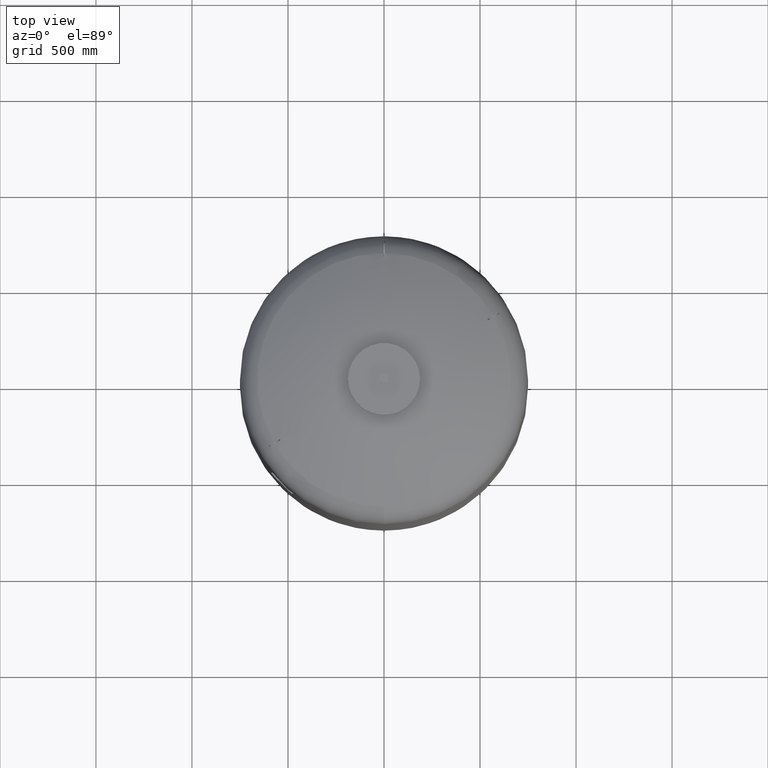
[diagram: clean part render]
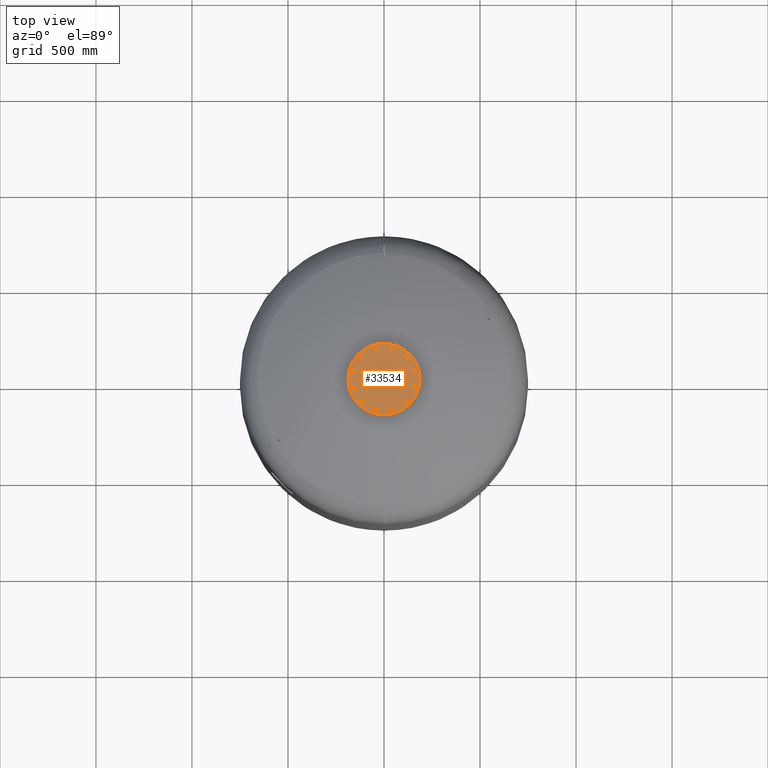
[diagram: same view with one face highlighted and labeled with its STEP entity id]
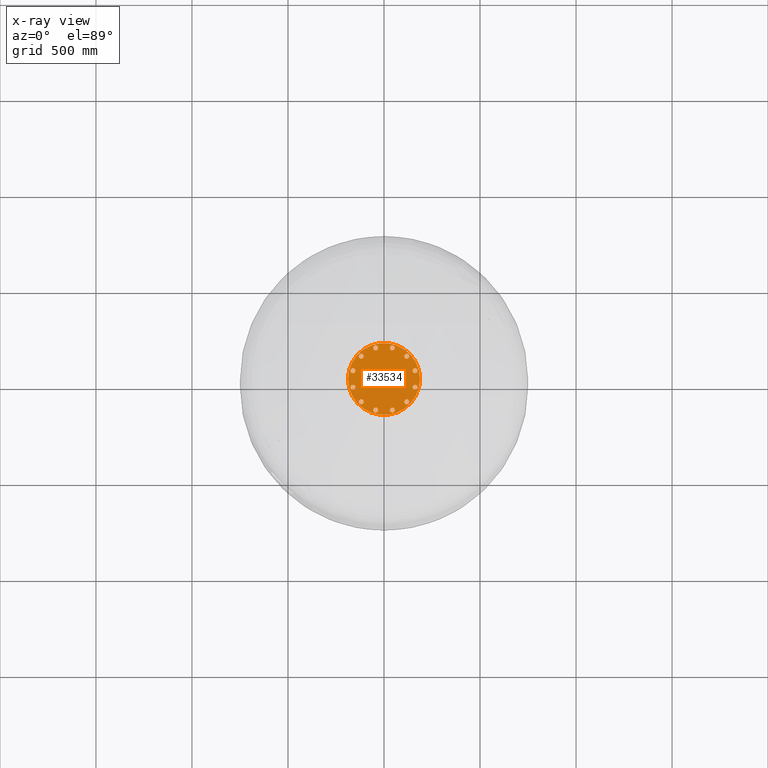
[diagram: x-ray of the same camera — body ghosted, the highlighted face saturated]
A machine part, top view. The second image highlights one B-rep face of the part: STEP entity #33534.
The next image is the same camera in x-ray: the body ghosted, the highlighted face saturated — about 0% of this face is hidden behind the body in this view.
In plain terms, the highlighted planar face has unit normal (0, 0, 1).
Its self-contained STEP definition (entity closure, byte-faithful):
#25772=CARTESIAN_POINT('',(-187.500000000000000,0.0,3056.0));
#25773=VERTEX_POINT('',#25772);
#25789=CARTESIAN_POINT('',(187.500000000000000,-2.296137E-014,3056.0));
#25790=VERTEX_POINT('',#25789);
#25797=CARTESIAN_POINT('',(0.0,0.0,3056.0));
#25798=DIRECTION('',(0.0,0.0,-1.0));
#25799=DIRECTION('',(-1.0,0.0,0.0));
#25800=AXIS2_PLACEMENT_3D('',#25797,#25798,#25799);
#25801=CIRCLE('',#25800,187.500000000000000);
#25802=EDGE_CURVE('',#25790,#25773,#25801,.T.);
#31028=CARTESIAN_POINT('',(157.729139400922860,30.104983413641008,3056.0));
#31029=VERTEX_POINT('',#31028);
#31030=CARTESIAN_POINT('',(148.288440171855850,40.247625971983268,3056.0));
#31031=VERTEX_POINT('',#31030);
#31032=CARTESIAN_POINT('',(157.729139400922860,30.104983413641008,3056.0));
#31033=DIRECTION('',(-0.681323780155013,0.731982176419128,0.0));
#31034=VECTOR('',#31033,13.856406460551090);
#31035=LINE('',#31032,#31034);
#31036=EDGE_CURVE('',#31029,#31031,#31035,.T.);
#31068=CARTESIAN_POINT('',(171.233275132485970,33.209547496330110,3056.0));
#31069=VERTEX_POINT('',#31068);
#31070=CARTESIAN_POINT('',(171.233275132485970,33.209547496330110,3056.0));
#31071=DIRECTION('',(-0.974577049973894,-0.224052613607123,0.0));
#31072=VECTOR('',#31071,13.856406460551119);
#31073=LINE('',#31070,#31072);
#31074=EDGE_CURVE('',#31069,#31029,#31073,.T.);
#31099=CARTESIAN_POINT('',(175.296711634982050,46.456754137361422,3056.0));
#31100=VERTEX_POINT('',#31099);
#31101=CARTESIAN_POINT('',(175.296711634982050,46.456754137361422,3056.0));
#31102=DIRECTION('',(-0.293253269818881,-0.956034790026249,0.0));
#31103=VECTOR('',#31102,13.856406460551076);
#31104=LINE('',#31101,#31103);
#31105=EDGE_CURVE('',#31100,#31069,#31104,.T.);
#31130=CARTESIAN_POINT('',(152.351876674351930,53.494832613014587,3056.0));
#31131=VERTEX_POINT('',#31130);
#31132=CARTESIAN_POINT('',(148.288440171855850,40.247625971983268,3056.0));
#31133=DIRECTION('',(0.293253269818881,0.956034790026249,0.0));
#31134=VECTOR('',#31133,13.856406460551083);
#31135=LINE('',#31132,#31134);
#31136=EDGE_CURVE('',#31031,#31131,#31135,.T.);
#31161=CARTESIAN_POINT('',(165.856012405915040,56.599396695703689,3056.0));
#31162=VERTEX_POINT('',#31161);
#31163=CARTESIAN_POINT('',(152.351876674351930,53.494832613014587,3056.0));
#31164=DIRECTION('',(0.974577049973894,0.224052613607123,0.0));
#31165=VECTOR('',#31164,13.856406460551119);
#31166=LINE('',#31163,#31165);
#31167=EDGE_CURVE('',#31131,#31162,#31166,.T.);
#31192=CARTESIAN_POINT('',(165.856012405915040,56.599396695703689,3056.0));
#31193=DIRECTION('',(0.681323780155012,-0.731982176419129,0.0));
#31194=VECTOR('',#31193,13.856406460551096);
#31195=LINE('',#31192,#31194);
#31196=EDGE_CURVE('',#31162,#31100,#31195,.T.);
#31228=CARTESIAN_POINT('',(121.544949931435720,104.936250117183760,3056.0));
#31229=VERTEX_POINT('',#31228);
#31230=CARTESIAN_POINT('',(108.297743290404380,108.999686619679820,3056.0));
#31231=VERTEX_POINT('',#31230);
#31232=CARTESIAN_POINT('',(121.544949931435720,104.936250117183760,3056.0));
#31233=DIRECTION('',(-0.956034790026250,0.293253269818880,0.0));
#31234=VECTOR('',#31233,13.856406460551101);
#31235=LINE('',#31232,#31234);
#31236=EDGE_CURVE('',#31229,#31231,#31235,.T.);
#31268=CARTESIAN_POINT('',(131.687592489777960,114.376949346250780,3056.0));
#31269=VERTEX_POINT('',#31268);
#31270=CARTESIAN_POINT('',(131.687592489777960,114.376949346250780,3056.0));
#31271=DIRECTION('',(-0.731982176419127,-0.681323780155014,0.0));
#31272=VECTOR('',#31271,13.856406460551080);
#31273=LINE('',#31270,#31272);
#31274=EDGE_CURVE('',#31269,#31229,#31273,.T.);
#31299=CARTESIAN_POINT('',(128.583028407088880,127.881085077813880,3056.0));
#31300=VERTEX_POINT('',#31299);
#31301=CARTESIAN_POINT('',(128.583028407088880,127.881085077813880,3056.0));
#31302=DIRECTION('',(0.224052613607122,-0.974577049973894,0.0));
#31303=VECTOR('',#31302,13.856406460551099);
#31304=LINE('',#31301,#31303);
#31305=EDGE_CURVE('',#31300,#31269,#31304,.T.);
#31330=CARTESIAN_POINT('',(105.193179207715300,122.503822351242900,3056.0));
#31331=VERTEX_POINT('',#31330);
#31332=CARTESIAN_POINT('',(108.297743290404380,108.999686619679820,3056.0));
#31333=DIRECTION('',(-0.224052613607122,0.974577049973894,0.0));
#31334=VECTOR('',#31333,13.856406460551087);
#31335=LINE('',#31332,#31334);
#31336=EDGE_CURVE('',#31231,#31331,#31335,.T.);
#31361=CARTESIAN_POINT('',(115.335821766057560,131.944521580309950,3056.0));
#31362=VERTEX_POINT('',#31361);
#31363=CARTESIAN_POINT('',(105.193179207715300,122.503822351242900,3056.0));
#31364=DIRECTION('',(0.731982176419127,0.681323780155014,0.0));
#31365=VECTOR('',#31364,13.856406460551121);
#31366=LINE('',#31363,#31365);
#31367=EDGE_CURVE('',#31331,#31362,#31366,.T.);
#31392=CARTESIAN_POINT('',(115.335821766057560,131.944521580309950,3056.0));
#31393=DIRECTION('',(0.956034790026249,-0.293253269818881,0.0));
#31394=VECTOR('',#31393,13.856406460551076);
#31395=LINE('',#31392,#31394);
#31396=EDGE_CURVE('',#31362,#31300,#31395,.T.);
#31428=CARTESIAN_POINT('',(52.792889283739193,151.649933345076730,3056.0));
#31429=VERTEX_POINT('',#31428);
#31430=CARTESIAN_POINT('',(39.288753552176118,148.545369262387680,3056.0));
#31431=VERTEX_POINT('',#31430);
#31432=CARTESIAN_POINT('',(52.792889283739193,151.649933345076730,3056.0));
#31433=DIRECTION('',(-0.974577049973894,-0.224052613607120,0.0));
#31434=VECTOR('',#31433,13.856406460551073);
#31435=LINE('',#31432,#31434);
#31436=EDGE_CURVE('',#31429,#31431,#31435,.T.);
#31468=CARTESIAN_POINT('',(56.856325786235274,164.897139986108100,3056.0));
#31469=VERTEX_POINT('',#31468);
#31470=CARTESIAN_POINT('',(56.856325786235274,164.897139986108100,3056.0));
#31471=DIRECTION('',(-0.293253269818881,-0.956034790026249,0.0));
#31472=VECTOR('',#31471,13.856406460551133);
#31473=LINE('',#31470,#31472);
#31474=EDGE_CURVE('',#31469,#31429,#31473,.T.);
#31499=CARTESIAN_POINT('',(47.415626557168267,175.039782544450330,3056.0));
#31500=VERTEX_POINT('',#31499);
#31501=CARTESIAN_POINT('',(47.415626557168267,175.039782544450330,3056.0));
#31502=DIRECTION('',(0.681323780155014,-0.731982176419128,0.0));
#31503=VECTOR('',#31502,13.856406460551069);
#31504=LINE('',#31501,#31503);
#31505=EDGE_CURVE('',#31500,#31469,#31504,.T.);
#31530=CARTESIAN_POINT('',(29.848054323109103,158.688011820729910,3056.0));
#31531=VERTEX_POINT('',#31530);
#31532=CARTESIAN_POINT('',(39.288753552176118,148.545369262387680,3056.0));
#31533=DIRECTION('',(-0.681323780155014,0.731982176419127,0.0));
#31534=VECTOR('',#31533,13.856406460551076);
#31535=LINE('',#31532,#31534);
#31536=EDGE_CURVE('',#31431,#31531,#31535,.T.);
#31561=CARTESIAN_POINT('',(33.911490825605156,171.935218461761250,3056.0));
#31562=VERTEX_POINT('',#31561);
#31563=CARTESIAN_POINT('',(29.848054323109103,158.688011820729910,3056.0));
#31564=DIRECTION('',(0.293253269818879,0.956034790026250,0.0));
#31565=VECTOR('',#31564,13.856406460551097);
#31566=LINE('',#31563,#31565);
#31567=EDGE_CURVE('',#31531,#31562,#31566,.T.);
#31592=CARTESIAN_POINT('',(33.911490825605156,171.935218461761250,3056.0));
#31593=DIRECTION('',(0.974577049973894,0.224052613607121,0.0));
#31594=VECTOR('',#31593,13.856406460551113);
#31595=LINE('',#31592,#31594);
#31596=EDGE_CURVE('',#31562,#31500,#31595,.T.);
#31628=CARTESIAN_POINT('',(-30.104983413641008,157.729139400922860,3056.0));
#31629=VERTEX_POINT('',#31628);
#31630=CARTESIAN_POINT('',(-40.247625971983268,148.288440171855850,3056.0));
#31631=VERTEX_POINT('',#31630);
#31632=CARTESIAN_POINT('',(-30.104983413641008,157.729139400922860,3056.0));
#31633=DIRECTION('',(-0.731982176419128,-0.681323780155013,0.0));
#31634=VECTOR('',#31633,13.856406460551090);
#31635=LINE('',#31632,#31634);
#31636=EDGE_CURVE('',#31629,#31631,#31635,.T.);
#31668=CARTESIAN_POINT('',(-33.209547496330110,171.233275132485970,3056.0));
#31669=VERTEX_POINT('',#31668);
#31670=CARTESIAN_POINT('',(-33.209547496330110,171.233275132485970,3056.0));
#31671=DIRECTION('',(0.224052613607123,-0.974577049973894,0.0));
#31672=VECTOR('',#31671,13.856406460551119);
#31673=LINE('',#31670,#31672);
#31674=EDGE_CURVE('',#31669,#31629,#31673,.T.);
#31699=CARTESIAN_POINT('',(-46.456754137361422,175.296711634982050,3056.0));
#31700=VERTEX_POINT('',#31699);
#31701=CARTESIAN_POINT('',(-46.456754137361422,175.296711634982050,3056.0));
#31702=DIRECTION('',(0.956034790026249,-0.293253269818881,0.0));
#31703=VECTOR('',#31702,13.856406460551076);
#31704=LINE('',#31701,#31703);
#31705=EDGE_CURVE('',#31700,#31669,#31704,.T.);
#31730=CARTESIAN_POINT('',(-53.494832613014587,152.351876674351930,3056.0));
#31731=VERTEX_POINT('',#31730);
#31732=CARTESIAN_POINT('',(-40.247625971983268,148.288440171855850,3056.0));
#31733=DIRECTION('',(-0.956034790026249,0.293253269818881,0.0));
#31734=VECTOR('',#31733,13.856406460551083);
#31735=LINE('',#31732,#31734);
#31736=EDGE_CURVE('',#31631,#31731,#31735,.T.);
#31761=CARTESIAN_POINT('',(-56.599396695703689,165.856012405915040,3056.0));
#31762=VERTEX_POINT('',#31761);
#31763=CARTESIAN_POINT('',(-53.494832613014587,152.351876674351930,3056.0));
#31764=DIRECTION('',(-0.224052613607123,0.974577049973894,0.0));
#31765=VECTOR('',#31764,13.856406460551119);
#31766=LINE('',#31763,#31765);
#31767=EDGE_CURVE('',#31731,#31762,#31766,.T.);
#31792=CARTESIAN_POINT('',(-56.599396695703689,165.856012405915040,3056.0));
#31793=DIRECTION('',(0.731982176419129,0.681323780155012,0.0));
#31794=VECTOR('',#31793,13.856406460551096);
#31795=LINE('',#31792,#31794);
#31796=EDGE_CURVE('',#31762,#31700,#31795,.T.);
#31828=CARTESIAN_POINT('',(-104.936250117183700,121.544949931435750,3056.0));
#31829=VERTEX_POINT('',#31828);
#31830=CARTESIAN_POINT('',(-108.999686619679760,108.297743290404440,3056.0));
#31831=VERTEX_POINT('',#31830);
#31832=CARTESIAN_POINT('',(-104.936250117183700,121.544949931435750,3056.0));
#31833=DIRECTION('',(-0.293253269818880,-0.956034790026249,0.0));
#31834=VECTOR('',#31833,13.856406460551073);
#31835=LINE('',#31832,#31834);
#31836=EDGE_CURVE('',#31829,#31831,#31835,.T.);
#31868=CARTESIAN_POINT('',(-114.376949346250730,131.687592489778010,3056.0));
#31869=VERTEX_POINT('',#31868);
#31870=CARTESIAN_POINT('',(-114.376949346250730,131.687592489778010,3056.0));
#31871=DIRECTION('',(0.681323780155013,-0.731982176419128,0.0));
#31872=VECTOR('',#31871,13.856406460551101);
#31873=LINE('',#31870,#31872);
#31874=EDGE_CURVE('',#31869,#31829,#31873,.T.);
#31899=CARTESIAN_POINT('',(-127.881085077813810,128.583028407088930,3056.0));
#31900=VERTEX_POINT('',#31899);
#31901=CARTESIAN_POINT('',(-127.881085077813810,128.583028407088930,3056.0));
#31902=DIRECTION('',(0.974577049973894,0.224052613607122,0.0));
#31903=VECTOR('',#31902,13.856406460551087);
#31904=LINE('',#31901,#31903);
#31905=EDGE_CURVE('',#31900,#31869,#31904,.T.);
#31930=CARTESIAN_POINT('',(-122.503822351242850,105.193179207715360,3056.0));
#31931=VERTEX_POINT('',#31930);
#31932=CARTESIAN_POINT('',(-108.999686619679760,108.297743290404440,3056.0));
#31933=DIRECTION('',(-0.974577049973894,-0.224052613607122,0.0));
#31934=VECTOR('',#31933,13.856406460551087);
#31935=LINE('',#31932,#31934);
#31936=EDGE_CURVE('',#31831,#31931,#31935,.T.);
#31961=CARTESIAN_POINT('',(-131.944521580309900,115.335821766057620,3056.0));
#31962=VERTEX_POINT('',#31961);
#31963=CARTESIAN_POINT('',(-122.503822351242850,105.193179207715360,3056.0));
#31964=DIRECTION('',(-0.681323780155014,0.731982176419127,0.0));
#31965=VECTOR('',#31964,13.856406460551121);
#31966=LINE('',#31963,#31965);
#31967=EDGE_CURVE('',#31931,#31962,#31966,.T.);
#31992=CARTESIAN_POINT('',(-131.944521580309900,115.335821766057620,3056.0));
#31993=DIRECTION('',(0.293253269818882,0.956034790026249,0.0));
#31994=VECTOR('',#31993,13.856406460551081);
#31995=LINE('',#31992,#31994);
#31996=EDGE_CURVE('',#31962,#31900,#31995,.T.);
#32028=CARTESIAN_POINT('',(-151.649933345076730,52.792889283739214,3056.0));
#32029=VERTEX_POINT('',#32028);
#32030=CARTESIAN_POINT('',(-148.545369262387650,39.288753552176125,3056.0));
#32031=VERTEX_POINT('',#32030);
#32032=CARTESIAN_POINT('',(-151.649933345076730,52.792889283739214,3056.0));
#32033=DIRECTION('',(0.224052613607122,-0.974577049973894,0.0));
#32034=VECTOR('',#32033,13.856406460551092);
#32035=LINE('',#32032,#32034);
#32036=EDGE_CURVE('',#32029,#32031,#32035,.T.);
#32068=CARTESIAN_POINT('',(-164.897139986108100,56.856325786235296,3056.0));
#32069=VERTEX_POINT('',#32068);
#32070=CARTESIAN_POINT('',(-164.897139986108100,56.856325786235296,3056.0));
#32071=DIRECTION('',(0.956034790026249,-0.293253269818881,0.0));
#32072=VECTOR('',#32071,13.856406460551133);
#32073=LINE('',#32070,#32072);
#32074=EDGE_CURVE('',#32069,#32029,#32073,.T.);
#32099=CARTESIAN_POINT('',(-175.039782544450300,47.415626557168260,3056.0));
#32100=VERTEX_POINT('',#32099);
#32101=CARTESIAN_POINT('',(-175.039782544450300,47.415626557168260,3056.0));
#32102=DIRECTION('',(0.731982176419126,0.681323780155016,0.0));
#32103=VECTOR('',#32102,13.856406460551069);
#32104=LINE('',#32101,#32103);
#32105=EDGE_CURVE('',#32100,#32069,#32104,.T.);
#32130=CARTESIAN_POINT('',(-158.688011820729910,29.848054323109110,3056.0));
#32131=VERTEX_POINT('',#32130);
#32132=CARTESIAN_POINT('',(-148.545369262387650,39.288753552176125,3056.0));
#32133=DIRECTION('',(-0.731982176419128,-0.681323780155013,0.0));
#32134=VECTOR('',#32133,13.856406460551096);
#32135=LINE('',#32132,#32134);
#32136=EDGE_CURVE('',#32031,#32131,#32135,.T.);
#32161=CARTESIAN_POINT('',(-171.935218461761250,33.911490825605171,3056.0));
#32162=VERTEX_POINT('',#32161);
#32163=CARTESIAN_POINT('',(-158.688011820729910,29.848054323109110,3056.0));
#32164=DIRECTION('',(-0.956034790026250,0.293253269818880,0.0));
#32165=VECTOR('',#32164,13.856406460551101);
#32166=LINE('',#32163,#32165);
#32167=EDGE_CURVE('',#32131,#32162,#32166,.T.);
#32192=CARTESIAN_POINT('',(-171.935218461761250,33.911490825605171,3056.0));
#32193=DIRECTION('',(-0.224052613607120,0.974577049973894,0.0));
#32194=VECTOR('',#32193,13.856406460551087);
#32195=LINE('',#32192,#32194);
#32196=EDGE_CURVE('',#32162,#32100,#32195,.T.);
#32228=CARTESIAN_POINT('',(-157.729139400922860,-30.104983413640987,3056.0));
#32229=VERTEX_POINT('',#32228);
#32230=CARTESIAN_POINT('',(-148.288440171855850,-40.247625971983247,3056.0));
#32231=VERTEX_POINT('',#32230);
#32232=CARTESIAN_POINT('',(-157.729139400922860,-30.104983413640987,3056.0));
#32233=DIRECTION('',(0.681323780155013,-0.731982176419128,0.0));
#32234=VECTOR('',#32233,13.856406460551090);
#32235=LINE('',#32232,#32234);
#32236=EDGE_CURVE('',#32229,#32231,#32235,.T.);
#32268=CARTESIAN_POINT('',(-171.233275132486000,-33.209547496330096,3056.0));
#32269=VERTEX_POINT('',#32268);
#32270=CARTESIAN_POINT('',(-171.233275132486000,-33.209547496330096,3056.0));
#32271=DIRECTION('',(0.974577049973894,0.224052613607123,0.0));
#32272=VECTOR('',#32271,13.856406460551147);
#32273=LINE('',#32270,#32272);
#32274=EDGE_CURVE('',#32269,#32229,#32273,.T.);
#32299=CARTESIAN_POINT('',(-175.296711634982050,-46.456754137361401,3056.0));
#32300=VERTEX_POINT('',#32299);
#32301=CARTESIAN_POINT('',(-175.296711634982050,-46.456754137361401,3056.0));
#32302=DIRECTION('',(0.293253269818880,0.956034790026250,0.0));
#32303=VECTOR('',#32302,13.856406460551062);
#32304=LINE('',#32301,#32303);
#32305=EDGE_CURVE('',#32300,#32269,#32304,.T.);
#32330=CARTESIAN_POINT('',(-152.351876674351960,-53.494832613014580,3056.0));
#32331=VERTEX_POINT('',#32330);
#32332=CARTESIAN_POINT('',(-148.288440171855850,-40.247625971983247,3056.0));
#32333=DIRECTION('',(-0.293253269818883,-0.956034790026249,0.0));
#32334=VECTOR('',#32333,13.856406460551106);
#32335=LINE('',#32332,#32334);
#32336=EDGE_CURVE('',#32231,#32331,#32335,.T.);
#32361=CARTESIAN_POINT('',(-165.856012405915070,-56.599396695703646,3056.0));
#32362=VERTEX_POINT('',#32361);
#32363=CARTESIAN_POINT('',(-152.351876674351960,-53.494832613014580,3056.0));
#32364=DIRECTION('',(-0.974577049973894,-0.224052613607121,0.0));
#32365=VECTOR('',#32364,13.856406460551110);
#32366=LINE('',#32363,#32365);
#32367=EDGE_CURVE('',#32331,#32362,#32366,.T.);
#32392=CARTESIAN_POINT('',(-165.856012405915070,-56.599396695703646,3056.0));
#32393=DIRECTION('',(-0.681323780155012,0.731982176419129,0.0));
#32394=VECTOR('',#32393,13.856406460551062);
#32395=LINE('',#32392,#32394);
#32396=EDGE_CURVE('',#32362,#32300,#32395,.T.);
#32428=CARTESIAN_POINT('',(-121.544949931435750,-104.936250117183680,3056.0));
#32429=VERTEX_POINT('',#32428);
#32430=CARTESIAN_POINT('',(-108.297743290404440,-108.999686619679760,3056.0));
#32431=VERTEX_POINT('',#32430);
#32432=CARTESIAN_POINT('',(-121.544949931435750,-104.936250117183680,3056.0));
#32433=DIRECTION('',(0.956034790026249,-0.293253269818882,0.0));
#32434=VECTOR('',#32433,13.856406460551081);
#32435=LINE('',#32432,#32434);
#32436=EDGE_CURVE('',#32429,#32431,#32435,.T.);
#32468=CARTESIAN_POINT('',(-131.687592489778010,-114.376949346250730,3056.0));
#32469=VERTEX_POINT('',#32468);
#32470=CARTESIAN_POINT('',(-131.687592489778010,-114.376949346250730,3056.0));
#32471=DIRECTION('',(0.731982176419127,0.681323780155014,0.0));
#32472=VECTOR('',#32471,13.856406460551121);
#32473=LINE('',#32470,#32472);
#32474=EDGE_CURVE('',#32469,#32429,#32473,.T.);
#32499=CARTESIAN_POINT('',(-128.583028407088930,-127.881085077813790,3056.0));
#32500=VERTEX_POINT('',#32499);
#32501=CARTESIAN_POINT('',(-128.583028407088930,-127.881085077813790,3056.0));
#32502=DIRECTION('',(-0.224052613607122,0.974577049973894,0.0));
#32503=VECTOR('',#32502,13.856406460551071);
#32504=LINE('',#32501,#32503);
#32505=EDGE_CURVE('',#32500,#32469,#32504,.T.);
#32530=CARTESIAN_POINT('',(-105.193179207715360,-122.503822351242850,3056.0));
#32531=VERTEX_POINT('',#32530);
#32532=CARTESIAN_POINT('',(-108.297743290404440,-108.999686619679760,3056.0));
#32533=DIRECTION('',(0.224052613607122,-0.974577049973894,0.0));
#32534=VECTOR('',#32533,13.856406460551087);
#32535=LINE('',#32532,#32534);
#32536=EDGE_CURVE('',#32431,#32531,#32535,.T.);
#32561=CARTESIAN_POINT('',(-115.335821766057620,-131.944521580309900,3056.0));
#32562=VERTEX_POINT('',#32561);
#32563=CARTESIAN_POINT('',(-105.193179207715360,-122.503822351242850,3056.0));
#32564=DIRECTION('',(-0.731982176419127,-0.681323780155014,0.0));
#32565=VECTOR('',#32564,13.856406460551121);
#32566=LINE('',#32563,#32565);
#32567=EDGE_CURVE('',#32531,#32562,#32566,.T.);
#32592=CARTESIAN_POINT('',(-115.335821766057620,-131.944521580309900,3056.0));
#32593=DIRECTION('',(-0.956034790026249,0.293253269818883,0.0));
#32594=VECTOR('',#32593,13.856406460551085);
#32595=LINE('',#32592,#32594);
#32596=EDGE_CURVE('',#32562,#32500,#32595,.T.);
#32628=CARTESIAN_POINT('',(-52.792889283739228,-151.649933345076730,3056.0));
#32629=VERTEX_POINT('',#32628);
#32630=CARTESIAN_POINT('',(-39.288753552176132,-148.545369262387680,3056.0));
#32631=VERTEX_POINT('',#32630);
#32632=CARTESIAN_POINT('',(-52.792889283739228,-151.649933345076730,3056.0));
#32633=DIRECTION('',(0.974577049973894,0.224052613607120,0.0));
#32634=VECTOR('',#32633,13.856406460551094);
#32635=LINE('',#32632,#32634);
#32636=EDGE_CURVE('',#32629,#32631,#32635,.T.);
#32668=CARTESIAN_POINT('',(-56.856325786235296,-164.897139986108100,3056.0));
#32669=VERTEX_POINT('',#32668);
#32670=CARTESIAN_POINT('',(-56.856325786235296,-164.897139986108100,3056.0));
#32671=DIRECTION('',(0.293253269818880,0.956034790026250,0.0));
#32672=VECTOR('',#32671,13.856406460551129);
#32673=LINE('',#32670,#32672);
#32674=EDGE_CURVE('',#32669,#32629,#32673,.T.);
#32699=CARTESIAN_POINT('',(-47.415626557168281,-175.039782544450300,3056.0));
#32700=VERTEX_POINT('',#32699);
#32701=CARTESIAN_POINT('',(-47.415626557168281,-175.039782544450300,3056.0));
#32702=DIRECTION('',(-0.681323780155015,0.731982176419126,0.0));
#32703=VECTOR('',#32702,13.856406460551055);
#32704=LINE('',#32701,#32703);
#32705=EDGE_CURVE('',#32700,#32669,#32704,.T.);
#32730=CARTESIAN_POINT('',(-29.848054323109121,-158.688011820729910,3056.0));
#32731=VERTEX_POINT('',#32730);
#32732=CARTESIAN_POINT('',(-39.288753552176132,-148.545369262387680,3056.0));
#32733=DIRECTION('',(0.681323780155014,-0.731982176419127,0.0));
#32734=VECTOR('',#32733,13.856406460551073);
#32735=LINE('',#32732,#32734);
#32736=EDGE_CURVE('',#32631,#32731,#32735,.T.);
#32761=CARTESIAN_POINT('',(-33.911490825605199,-171.935218461761280,3056.0));
#32762=VERTEX_POINT('',#32761);
#32763=CARTESIAN_POINT('',(-29.848054323109121,-158.688011820729910,3056.0));
#32764=DIRECTION('',(-0.293253269818880,-0.956034790026249,0.0));
#32765=VECTOR('',#32764,13.856406460551133);
#32766=LINE('',#32763,#32765);
#32767=EDGE_CURVE('',#32731,#32762,#32766,.T.);
#32792=CARTESIAN_POINT('',(-33.911490825605199,-171.935218461761280,3056.0));
#32793=DIRECTION('',(-0.974577049973895,-0.224052613607118,0.0));
#32794=VECTOR('',#32793,13.856406460551074);
#32795=LINE('',#32792,#32794);
#32796=EDGE_CURVE('',#32762,#32700,#32795,.T.);
#32828=CARTESIAN_POINT('',(30.104983413640952,-157.729139400922890,3056.0));
#32829=VERTEX_POINT('',#32828);
#32830=CARTESIAN_POINT('',(40.247625971983211,-148.288440171855880,3056.0));
#32831=VERTEX_POINT('',#32830);
#32832=CARTESIAN_POINT('',(30.104983413640952,-157.729139400922890,3056.0));
#32833=DIRECTION('',(0.731982176419128,0.681323780155013,0.0));
#32834=VECTOR('',#32833,13.856406460551090);
#32835=LINE('',#32832,#32834);
#32836=EDGE_CURVE('',#32829,#32831,#32835,.T.);
#32868=CARTESIAN_POINT('',(33.209547496330039,-171.233275132486000,3056.0));
#32869=VERTEX_POINT('',#32868);
#32870=CARTESIAN_POINT('',(33.209547496330039,-171.233275132486000,3056.0));
#32871=DIRECTION('',(-0.224052613607122,0.974577049973894,0.0));
#32872=VECTOR('',#32871,13.856406460551115);
#32873=LINE('',#32870,#32872);
#32874=EDGE_CURVE('',#32869,#32829,#32873,.T.);
#32899=CARTESIAN_POINT('',(46.456754137361351,-175.296711634982070,3056.0));
#32900=VERTEX_POINT('',#32899);
#32901=CARTESIAN_POINT('',(46.456754137361351,-175.296711634982070,3056.0));
#32902=DIRECTION('',(-0.956034790026249,0.293253269818881,0.0));
#32903=VECTOR('',#32902,13.856406460551076);
#32904=LINE('',#32901,#32903);
#32905=EDGE_CURVE('',#32900,#32869,#32904,.T.);
#32930=CARTESIAN_POINT('',(53.494832613014523,-152.351876674351960,3056.0));
#32931=VERTEX_POINT('',#32930);
#32932=CARTESIAN_POINT('',(40.247625971983211,-148.288440171855880,3056.0));
#32933=DIRECTION('',(0.956034790026249,-0.293253269818881,0.0));
#32934=VECTOR('',#32933,13.856406460551076);
#32935=LINE('',#32932,#32934);
#32936=EDGE_CURVE('',#32831,#32931,#32935,.T.);
#32961=CARTESIAN_POINT('',(56.599396695703625,-165.856012405915070,3056.0));
#32962=VERTEX_POINT('',#32961);
#32963=CARTESIAN_POINT('',(53.494832613014523,-152.351876674351960,3056.0));
#32964=DIRECTION('',(0.224052613607123,-0.974577049973894,0.0));
#32965=VECTOR('',#32964,13.856406460551119);
#32966=LINE('',#32963,#32965);
#32967=EDGE_CURVE('',#32931,#32962,#32966,.T.);
#32992=CARTESIAN_POINT('',(56.599396695703625,-165.856012405915070,3056.0));
#32993=DIRECTION('',(-0.731982176419129,-0.681323780155012,0.0));
#32994=VECTOR('',#32993,13.856406460551101);
#32995=LINE('',#32992,#32994);
#32996=EDGE_CURVE('',#32962,#32900,#32995,.T.);
#33028=CARTESIAN_POINT('',(104.936250117183660,-121.544949931435800,3056.0));
#33029=VERTEX_POINT('',#33028);
#33030=CARTESIAN_POINT('',(108.999686619679750,-108.297743290404470,3056.0));
#33031=VERTEX_POINT('',#33030);
#33032=CARTESIAN_POINT('',(104.936250117183660,-121.544949931435800,3056.0));
#33033=DIRECTION('',(0.293253269818882,0.956034790026249,0.0));
#33034=VECTOR('',#33033,13.856406460551094);
#33035=LINE('',#33032,#33034);
#33036=EDGE_CURVE('',#33029,#33031,#33035,.T.);
#33068=CARTESIAN_POINT('',(114.376949346250710,-131.687592489778040,3056.0));
#33069=VERTEX_POINT('',#33068);
#33070=CARTESIAN_POINT('',(114.376949346250710,-131.687592489778040,3056.0));
#33071=DIRECTION('',(-0.681323780155015,0.731982176419126,0.0));
#33072=VECTOR('',#33071,13.856406460551110);
#33073=LINE('',#33070,#33072);
#33074=EDGE_CURVE('',#33069,#33029,#33073,.T.);
#33099=CARTESIAN_POINT('',(127.881085077813760,-128.583028407088960,3056.0));
#33100=VERTEX_POINT('',#33099);
#33101=CARTESIAN_POINT('',(127.881085077813760,-128.583028407088960,3056.0));
#33102=DIRECTION('',(-0.974577049973894,-0.224052613607122,0.0));
#33103=VECTOR('',#33102,13.856406460551058);
#33104=LINE('',#33101,#33103);
#33105=EDGE_CURVE('',#33100,#33069,#33104,.T.);
#33130=CARTESIAN_POINT('',(122.503822351242830,-105.193179207715390,3056.0));
#33131=VERTEX_POINT('',#33130);
#33132=CARTESIAN_POINT('',(108.999686619679750,-108.297743290404470,3056.0));
#33133=DIRECTION('',(0.974577049973894,0.224052613607122,0.0));
#33134=VECTOR('',#33133,13.856406460551087);
#33135=LINE('',#33132,#33134);
#33136=EDGE_CURVE('',#33031,#33131,#33135,.T.);
#33161=CARTESIAN_POINT('',(131.944521580309870,-115.335821766057650,3056.0));
#33162=VERTEX_POINT('',#33161);
#33163=CARTESIAN_POINT('',(122.503822351242830,-105.193179207715390,3056.0));
#33164=DIRECTION('',(0.681323780155014,-0.731982176419127,0.0));
#33165=VECTOR('',#33164,13.856406460551110);
#33166=LINE('',#33163,#33165);
#33167=EDGE_CURVE('',#33131,#33162,#33166,.T.);
#33192=CARTESIAN_POINT('',(131.944521580309870,-115.335821766057650,3056.0));
#33193=DIRECTION('',(-0.293253269818883,-0.956034790026249,0.0));
#33194=VECTOR('',#33193,13.856406460551085);
#33195=LINE('',#33192,#33194);
#33196=EDGE_CURVE('',#33162,#33100,#33195,.T.);
#33228=CARTESIAN_POINT('',(151.649933345076730,-52.792889283739228,3056.0));
#33229=VERTEX_POINT('',#33228);
#33230=CARTESIAN_POINT('',(148.545369262387650,-39.288753552176139,3056.0));
#33231=VERTEX_POINT('',#33230);
#33232=CARTESIAN_POINT('',(151.649933345076730,-52.792889283739228,3056.0));
#33233=DIRECTION('',(-0.224052613607122,0.974577049973894,0.0));
#33234=VECTOR('',#33233,13.856406460551092);
#33235=LINE('',#33232,#33234);
#33236=EDGE_CURVE('',#33229,#33231,#33235,.T.);
#33268=CARTESIAN_POINT('',(164.897139986108070,-56.856325786235303,3056.0));
#33269=VERTEX_POINT('',#33268);
#33270=CARTESIAN_POINT('',(164.897139986108070,-56.856325786235303,3056.0));
#33271=DIRECTION('',(-0.956034790026249,0.293253269818881,0.0));
#33272=VECTOR('',#33271,13.856406460551105);
#33273=LINE('',#33270,#33272);
#33274=EDGE_CURVE('',#33269,#33229,#33273,.T.);
#33299=CARTESIAN_POINT('',(175.039782544450300,-47.415626557168295,3056.0));
#33300=VERTEX_POINT('',#33299);
#33301=CARTESIAN_POINT('',(175.039782544450300,-47.415626557168295,3056.0));
#33302=DIRECTION('',(-0.731982176419128,-0.681323780155014,0.0));
#33303=VECTOR('',#33302,13.856406460551069);
#33304=LINE('',#33301,#33303);
#33305=EDGE_CURVE('',#33300,#33269,#33304,.T.);
#33330=CARTESIAN_POINT('',(158.688011820729910,-29.848054323109132,3056.0));
#33331=VERTEX_POINT('',#33330);
#33332=CARTESIAN_POINT('',(148.545369262387650,-39.288753552176139,3056.0));
#33333=DIRECTION('',(0.731982176419128,0.681323780155013,0.0));
#33334=VECTOR('',#33333,13.856406460551090);
#33335=LINE('',#33332,#33334);
#33336=EDGE_CURVE('',#33231,#33331,#33335,.T.);
#33361=CARTESIAN_POINT('',(171.935218461761250,-33.911490825605206,3056.0));
#33362=VERTEX_POINT('',#33361);
#33363=CARTESIAN_POINT('',(158.688011820729910,-29.848054323109132,3056.0));
#33364=DIRECTION('',(0.956034790026249,-0.293253269818881,0.0));
#33365=VECTOR('',#33364,13.856406460551105);
#33366=LINE('',#33363,#33365);
#33367=EDGE_CURVE('',#33331,#33362,#33366,.T.);
#33392=CARTESIAN_POINT('',(171.935218461761250,-33.911490825605206,3056.0));
#33393=DIRECTION('',(0.224052613607120,-0.974577049973894,0.0));
#33394=VECTOR('',#33393,13.856406460551087);
#33395=LINE('',#33392,#33394);
#33396=EDGE_CURVE('',#33362,#33300,#33395,.T.);
#33423=CARTESIAN_POINT('',(-93.750000000000000,-7.888609E-031,3056.0));
#33424=DIRECTION('',(0.0,0.0,1.0));
#33425=DIRECTION('',(0.0,1.0,0.0));
#33426=AXIS2_PLACEMENT_3D('',#33423,#33424,#33425);
#33427=PLANE('',#33426);
#33428=CARTESIAN_POINT('',(0.0,0.0,3056.0));
#33429=DIRECTION('',(0.0,0.0,-1.0));
#33430=DIRECTION('',(-1.0,0.0,0.0));
#33431=AXIS2_PLACEMENT_3D('',#33428,#33429,#33430);
#33432=CIRCLE('',#33431,187.500000000000000);
#33433=EDGE_CURVE('',#25773,#25790,#33432,.T.);
#33434=ORIENTED_EDGE('',*,*,#33433,.F.);
#33435=ORIENTED_EDGE('',*,*,#25802,.F.);
#33436=EDGE_LOOP('',(#33434,#33435));
#33437=FACE_OUTER_BOUND('',#33436,.T.);
#33438=ORIENTED_EDGE('',*,*,#31036,.T.);
#33439=ORIENTED_EDGE('',*,*,#31136,.T.);
#33440=ORIENTED_EDGE('',*,*,#31167,.T.);
#33441=ORIENTED_EDGE('',*,*,#31196,.T.);
#33442=ORIENTED_EDGE('',*,*,#31105,.T.);
#33443=ORIENTED_EDGE('',*,*,#31074,.T.);
#33444=EDGE_LOOP('',(#33438,#33439,#33440,#33441,#33442,#33443));
#33445=FACE_BOUND('',#33444,.T.);
#33446=ORIENTED_EDGE('',*,*,#31236,.T.);
#33447=ORIENTED_EDGE('',*,*,#31336,.T.);
#33448=ORIENTED_EDGE('',*,*,#31367,.T.);
#33449=ORIENTED_EDGE('',*,*,#31396,.T.);
#33450=ORIENTED_EDGE('',*,*,#31305,.T.);
#33451=ORIENTED_EDGE('',*,*,#31274,.T.);
#33452=EDGE_LOOP('',(#33446,#33447,#33448,#33449,#33450,#33451));
#33453=FACE_BOUND('',#33452,.T.);
#33454=ORIENTED_EDGE('',*,*,#31436,.T.);
#33455=ORIENTED_EDGE('',*,*,#31536,.T.);
#33456=ORIENTED_EDGE('',*,*,#31567,.T.);
#33457=ORIENTED_EDGE('',*,*,#31596,.T.);
#33458=ORIENTED_EDGE('',*,*,#31505,.T.);
#33459=ORIENTED_EDGE('',*,*,#31474,.T.);
#33460=EDGE_LOOP('',(#33454,#33455,#33456,#33457,#33458,#33459));
#33461=FACE_BOUND('',#33460,.T.);
#33462=ORIENTED_EDGE('',*,*,#31636,.T.);
#33463=ORIENTED_EDGE('',*,*,#31736,.T.);
#33464=ORIENTED_EDGE('',*,*,#31767,.T.);
#33465=ORIENTED_EDGE('',*,*,#31796,.T.);
#33466=ORIENTED_EDGE('',*,*,#31705,.T.);
#33467=ORIENTED_EDGE('',*,*,#31674,.T.);
#33468=EDGE_LOOP('',(#33462,#33463,#33464,#33465,#33466,#33467));
#33469=FACE_BOUND('',#33468,.T.);
#33470=ORIENTED_EDGE('',*,*,#31836,.T.);
#33471=ORIENTED_EDGE('',*,*,#31936,.T.);
#33472=ORIENTED_EDGE('',*,*,#31967,.T.);
#33473=ORIENTED_EDGE('',*,*,#31996,.T.);
#33474=ORIENTED_EDGE('',*,*,#31905,.T.);
#33475=ORIENTED_EDGE('',*,*,#31874,.T.);
#33476=EDGE_LOOP('',(#33470,#33471,#33472,#33473,#33474,#33475));
#33477=FACE_BOUND('',#33476,.T.);
#33478=ORIENTED_EDGE('',*,*,#32036,.T.);
#33479=ORIENTED_EDGE('',*,*,#32136,.T.);
#33480=ORIENTED_EDGE('',*,*,#32167,.T.);
#33481=ORIENTED_EDGE('',*,*,#32196,.T.);
#33482=ORIENTED_EDGE('',*,*,#32105,.T.);
#33483=ORIENTED_EDGE('',*,*,#32074,.T.);
#33484=EDGE_LOOP('',(#33478,#33479,#33480,#33481,#33482,#33483));
#33485=FACE_BOUND('',#33484,.T.);
#33486=ORIENTED_EDGE('',*,*,#32236,.T.);
#33487=ORIENTED_EDGE('',*,*,#32336,.T.);
#33488=ORIENTED_EDGE('',*,*,#32367,.T.);
#33489=ORIENTED_EDGE('',*,*,#32396,.T.);
#33490=ORIENTED_EDGE('',*,*,#32305,.T.);
#33491=ORIENTED_EDGE('',*,*,#32274,.T.);
#33492=EDGE_LOOP('',(#33486,#33487,#33488,#33489,#33490,#33491));
#33493=FACE_BOUND('',#33492,.T.);
#33494=ORIENTED_EDGE('',*,*,#32436,.T.);
#33495=ORIENTED_EDGE('',*,*,#32536,.T.);
#33496=ORIENTED_EDGE('',*,*,#32567,.T.);
#33497=ORIENTED_EDGE('',*,*,#32596,.T.);
#33498=ORIENTED_EDGE('',*,*,#32505,.T.);
#33499=ORIENTED_EDGE('',*,*,#32474,.T.);
#33500=EDGE_LOOP('',(#33494,#33495,#33496,#33497,#33498,#33499));
#33501=FACE_BOUND('',#33500,.T.);
#33502=ORIENTED_EDGE('',*,*,#32636,.T.);
#33503=ORIENTED_EDGE('',*,*,#32736,.T.);
#33504=ORIENTED_EDGE('',*,*,#32767,.T.);
#33505=ORIENTED_EDGE('',*,*,#32796,.T.);
#33506=ORIENTED_EDGE('',*,*,#32705,.T.);
#33507=ORIENTED_EDGE('',*,*,#32674,.T.);
#33508=EDGE_LOOP('',(#33502,#33503,#33504,#33505,#33506,#33507));
#33509=FACE_BOUND('',#33508,.T.);
#33510=ORIENTED_EDGE('',*,*,#32836,.T.);
#33511=ORIENTED_EDGE('',*,*,#32936,.T.);
#33512=ORIENTED_EDGE('',*,*,#32967,.T.);
#33513=ORIENTED_EDGE('',*,*,#32996,.T.);
#33514=ORIENTED_EDGE('',*,*,#32905,.T.);
#33515=ORIENTED_EDGE('',*,*,#32874,.T.);
#33516=EDGE_LOOP('',(#33510,#33511,#33512,#33513,#33514,#33515));
#33517=FACE_BOUND('',#33516,.T.);
#33518=ORIENTED_EDGE('',*,*,#33036,.T.);
#33519=ORIENTED_EDGE('',*,*,#33136,.T.);
#33520=ORIENTED_EDGE('',*,*,#33167,.T.);
#33521=ORIENTED_EDGE('',*,*,#33196,.T.);
#33522=ORIENTED_EDGE('',*,*,#33105,.T.);
#33523=ORIENTED_EDGE('',*,*,#33074,.T.);
#33524=EDGE_LOOP('',(#33518,#33519,#33520,#33521,#33522,#33523));
#33525=FACE_BOUND('',#33524,.T.);
#33526=ORIENTED_EDGE('',*,*,#33236,.T.);
#33527=ORIENTED_EDGE('',*,*,#33336,.T.);
#33528=ORIENTED_EDGE('',*,*,#33367,.T.);
#33529=ORIENTED_EDGE('',*,*,#33396,.T.);
#33530=ORIENTED_EDGE('',*,*,#33305,.T.);
#33531=ORIENTED_EDGE('',*,*,#33274,.T.);
#33532=EDGE_LOOP('',(#33526,#33527,#33528,#33529,#33530,#33531));
#33533=FACE_BOUND('',#33532,.T.);
#33534=ADVANCED_FACE('',(#33437,#33445,#33453,#33461,#33469,#33477,#33485,#33493,#33501,#33509,#33517,#33525,#33533),#33427,.T.);